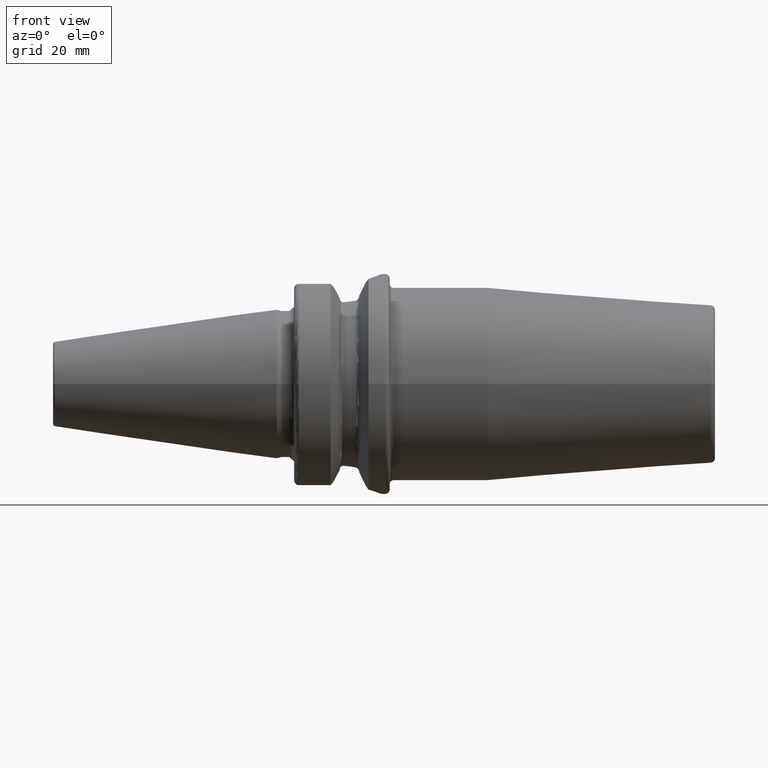
[diagram: clean part render]
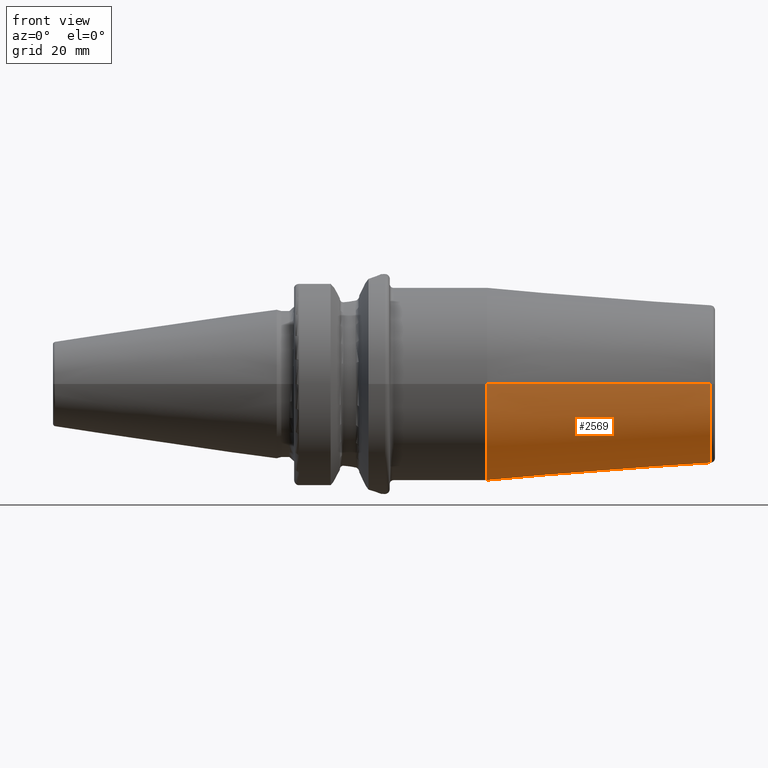
[diagram: same view with one face highlighted and labeled with its STEP entity id]
A machine part, front view. The second image highlights one B-rep face of the part: STEP entity #2569.
In plain terms, the highlighted conical surface has half-angle 4.5 deg.
Its self-contained STEP definition (entity closure, byte-faithful):
#861=CARTESIAN_POINT('',(4.235173223934E1,0.E0,0.E0));
#862=DIRECTION('',(-1.E0,0.E0,0.E0));
#863=DIRECTION('',(0.E0,1.E0,0.E0));
#864=AXIS2_PLACEMENT_3D('',#861,#862,#863);
#870=DIRECTION('',(-9.969173337331E-1,7.845909572785E-2,0.E0));
#871=VECTOR('',#870,4.687121517028E1);
#872=CARTESIAN_POINT('',(8.907845909573E1,1.657252684207E1,
-3.221850256586E-13));
#873=LINE('',#872,#871);
#874=DIRECTION('',(-9.969173337331E-1,-7.845909572785E-2,0.E0));
#875=VECTOR('',#874,4.687121517028E1);
#876=CARTESIAN_POINT('',(8.907845909573E1,-1.657252684207E1,
3.216706994660E-13));
#877=LINE('',#876,#875);
#878=CARTESIAN_POINT('',(8.907845909573E1,0.E0,0.E0));
#879=DIRECTION('',(-1.E0,0.E0,0.E0));
#880=DIRECTION('',(0.E0,1.E0,0.E0));
#881=AXIS2_PLACEMENT_3D('',#878,#879,#880);
#1383=CARTESIAN_POINT('',(4.235173223934E1,2.025E1,0.E0));
#1384=CARTESIAN_POINT('',(4.235173223934E1,-2.025E1,0.E0));
#1385=VERTEX_POINT('',#1383);
#1386=VERTEX_POINT('',#1384);
#1395=CARTESIAN_POINT('',(8.907845909573E1,1.657252684207E1,
-3.221850256586E-13));
#1396=VERTEX_POINT('',#1395);
#1397=CARTESIAN_POINT('',(8.907845909573E1,-1.657252684207E1,
3.216706994660E-13));
#1398=VERTEX_POINT('',#1397);
#2555=CARTESIAN_POINT('',(6.571509566754E1,0.E0,0.E0));
#2556=DIRECTION('',(-1.E0,0.E0,0.E0));
#2557=DIRECTION('',(0.E0,1.E0,0.E0));
#2558=AXIS2_PLACEMENT_3D('',#2555,#2556,#2557);
#2559=CONICAL_SURFACE('',#2558,1.841126342104E1,4.5E0);
#2561=ORIENTED_EDGE('',*,*,#2560,.T.);
#2562=ORIENTED_EDGE('',*,*,#2549,.T.);
#2564=ORIENTED_EDGE('',*,*,#2563,.F.);
#2566=ORIENTED_EDGE('',*,*,#2565,.F.);
#2567=EDGE_LOOP('',(#2561,#2562,#2564,#2566));
#2568=FACE_OUTER_BOUND('',#2567,.F.);
#2569=ADVANCED_FACE('',(#2568),#2559,.T.);
#865=CIRCLE('',#864,2.025E1);
#882=CIRCLE('',#881,1.657252684207E1);
#2549=EDGE_CURVE('',#1385,#1386,#865,.T.);
#2560=EDGE_CURVE('',#1396,#1385,#873,.T.);
#2563=EDGE_CURVE('',#1398,#1386,#877,.T.);
#2565=EDGE_CURVE('',#1396,#1398,#882,.T.);